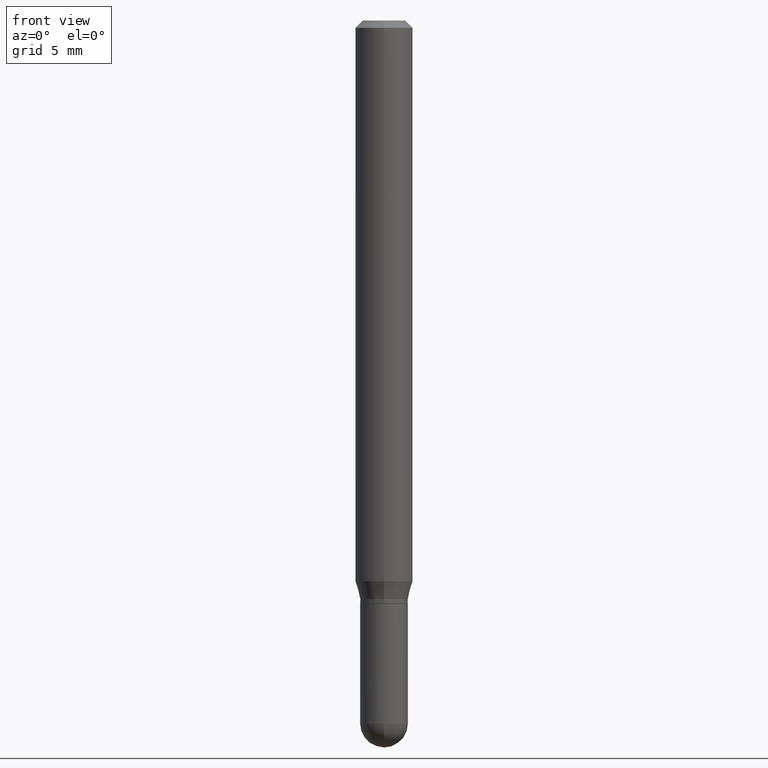
[diagram: clean part render]
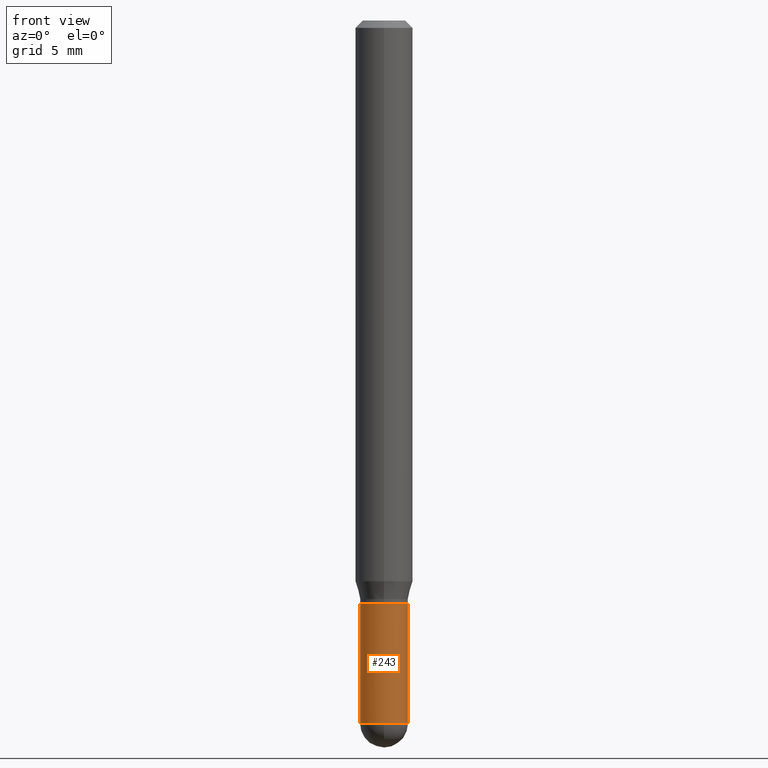
[diagram: same view with one face highlighted and labeled with its STEP entity id]
A machine part, front view. The second image highlights one B-rep face of the part: STEP entity #243.
In plain terms, the highlighted cylindrical surface (edge-blend (fillet) strip) has radius 1.2497 mm, axis along (-0, 0, 1).
Its self-contained STEP definition (entity closure, byte-faithful):
#3 = AXIS2_PLACEMENT_3D ( 'NONE', #242, #206, #55 ) ;
#8 = DIRECTION ( 'NONE',  ( -2.445468806185136877E-29, 3.491481338843145188E-15, 1.000000000000000000 ) ) ;
#30 = CARTESIAN_POINT ( 'NONE',  ( 2.936518942467111614E-29, -4.192570791682848632E-15, -1.200799999999999867 ) ) ;
#45 = DIRECTION ( 'NONE',  ( -2.445468806185136597E-29, 3.491481338843145583E-15, 1.000000000000000000 ) ) ;
#51 = CARTESIAN_POINT ( 'NONE',  ( -3.435617637421291240E-16, -0.04920000000000508689, -1.446899999999999631 ) ) ;
#55 = DIRECTION ( 'NONE',  ( 1.000000000000000000, -6.982962677686261977E-15, 0.000000000000000000 ) ) ;
#93 = ORIENTED_EDGE ( 'NONE', *, *, #381, .T. ) ;
#100 = EDGE_CURVE ( 'NONE', #439, #180, #207, .T. ) ;
#114 = CARTESIAN_POINT ( 'NONE',  ( 0.04920000000000000068, -3.435617637421643269E-16, 2.399078973691600472E-30 ) ) ;
#125 = CARTESIAN_POINT ( 'NONE',  ( -0.04920000000000000068, -4.272610544433528176E-15, -1.446899999999999853 ) ) ;
#146 = CYLINDRICAL_SURFACE ( 'NONE', #160, 0.04920000000000000068 ) ;
#149 = CARTESIAN_POINT ( 'NONE',  ( 0.04920000000000000068, -4.965759334169662144E-15, -1.446899999999999853 ) ) ;
#151 = CIRCLE ( 'NONE', #170, 0.04920000000000000068 ) ;
#152 = CARTESIAN_POINT ( 'NONE',  ( -0.04920000000000000068, -4.272610544433528176E-15, -1.200799999999999867 ) ) ;
#153 = VERTEX_POINT ( 'NONE', #466 ) ;
#157 = VERTEX_POINT ( 'NONE', #149 ) ;
#160 = AXIS2_PLACEMENT_3D ( 'NONE', #463, #395, #458 ) ;
#166 = ORIENTED_EDGE ( 'NONE', *, *, #184, .T. ) ;
#170 = AXIS2_PLACEMENT_3D ( 'NONE', #226, #303, #306 ) ;
#180 = VERTEX_POINT ( 'NONE', #152 ) ;
#184 = EDGE_CURVE ( 'NONE', #368, #157, #151, .T. ) ;
#189 = EDGE_CURVE ( 'NONE', #157, #153, #193, .T. ) ;
#193 = LINE ( 'NONE', #114, #272 ) ;
#199 = DIRECTION ( 'NONE',  ( 1.000000000000000000, -6.982962677686261977E-15, 0.000000000000000000 ) ) ;
#205 = ORIENTED_EDGE ( 'NONE', *, *, #100, .F. ) ;
#206 = DIRECTION ( 'NONE',  ( -2.445468806185136597E-29, 3.491481338843145583E-15, 1.000000000000000000 ) ) ;
#207 = LINE ( 'NONE', #356, #234 ) ;
#226 = CARTESIAN_POINT ( 'NONE',  ( 3.538348815669273817E-29, -5.051824349172146609E-15, -1.446899999999999853 ) ) ;
#234 = VECTOR ( 'NONE', #8, 39.37007874015748143 ) ;
#239 = FACE_OUTER_BOUND ( 'NONE', #297, .T. ) ;
#242 = CARTESIAN_POINT ( 'NONE',  ( 3.538348815669273817E-29, -5.051824349172146609E-15, -1.446899999999999853 ) ) ;
#243 = ADVANCED_FACE ( 'NONE', ( #239 ), #146, .T. ) ;
#272 = VECTOR ( 'NONE', #424, 39.37007874015748143 ) ;
#278 = EDGE_CURVE ( 'NONE', #180, #153, #391, .T. ) ;
#297 = EDGE_LOOP ( 'NONE', ( #205, #93, #166, #489, #307 ) ) ;
#303 = DIRECTION ( 'NONE',  ( -2.445468806185136597E-29, 3.491481338843145583E-15, 1.000000000000000000 ) ) ;
#306 = DIRECTION ( 'NONE',  ( 1.000000000000000000, -6.982962677686261977E-15, 0.000000000000000000 ) ) ;
#307 = ORIENTED_EDGE ( 'NONE', *, *, #278, .F. ) ;
#333 = CIRCLE ( 'NONE', #3, 0.04920000000000000068 ) ;
#356 = CARTESIAN_POINT ( 'NONE',  ( -0.04920000000000000068, 3.495870259939692963E-16, -2.420116064405413767E-30 ) ) ;
#365 = AXIS2_PLACEMENT_3D ( 'NONE', #30, #45, #199 ) ;
#368 = VERTEX_POINT ( 'NONE', #51 ) ;
#381 = EDGE_CURVE ( 'NONE', #439, #368, #333, .T. ) ;
#391 = CIRCLE ( 'NONE', #365, 0.04920000000000000068 ) ;
#395 = DIRECTION ( 'NONE',  ( -2.445468806185136597E-29, 3.491481338843145583E-15, 1.000000000000000000 ) ) ;
#424 = DIRECTION ( 'NONE',  ( -2.445468806185136877E-29, 3.491481338843145188E-15, 1.000000000000000000 ) ) ;
#439 = VERTEX_POINT ( 'NONE', #125 ) ;
#458 = DIRECTION ( 'NONE',  ( 1.000000000000000000, -6.982962677686266711E-15, 4.876176775795935793E-29 ) ) ;
#463 = CARTESIAN_POINT ( 'NONE',  ( 0.000000000000000000, 0.000000000000000000, 0.000000000000000000 ) ) ;
#466 = CARTESIAN_POINT ( 'NONE',  ( 0.04920000000000000068, -4.536132555425013156E-15, -1.200799999999999867 ) ) ;
#489 = ORIENTED_EDGE ( 'NONE', *, *, #189, .T. ) ;